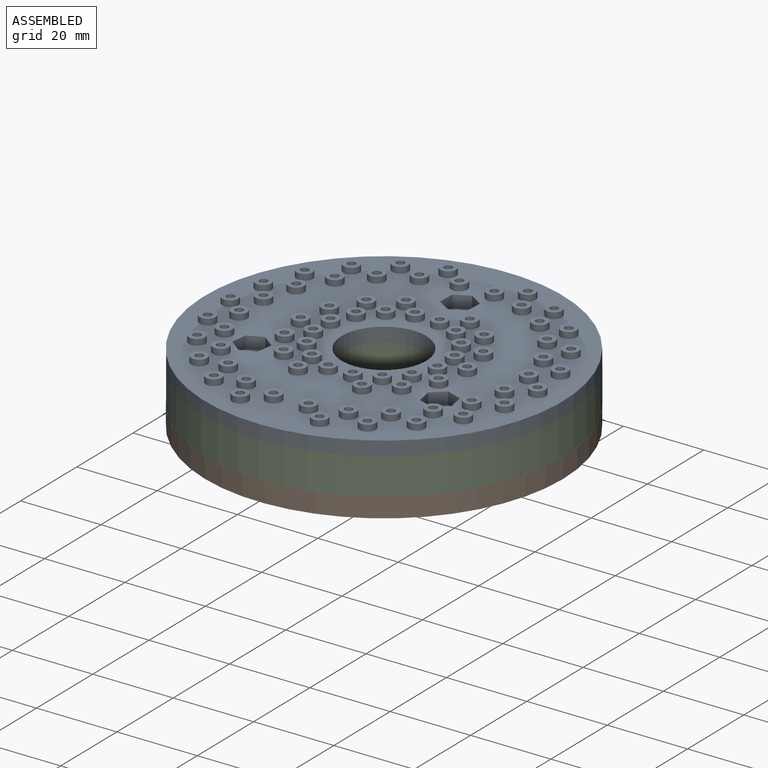
[diagram: assembled view]
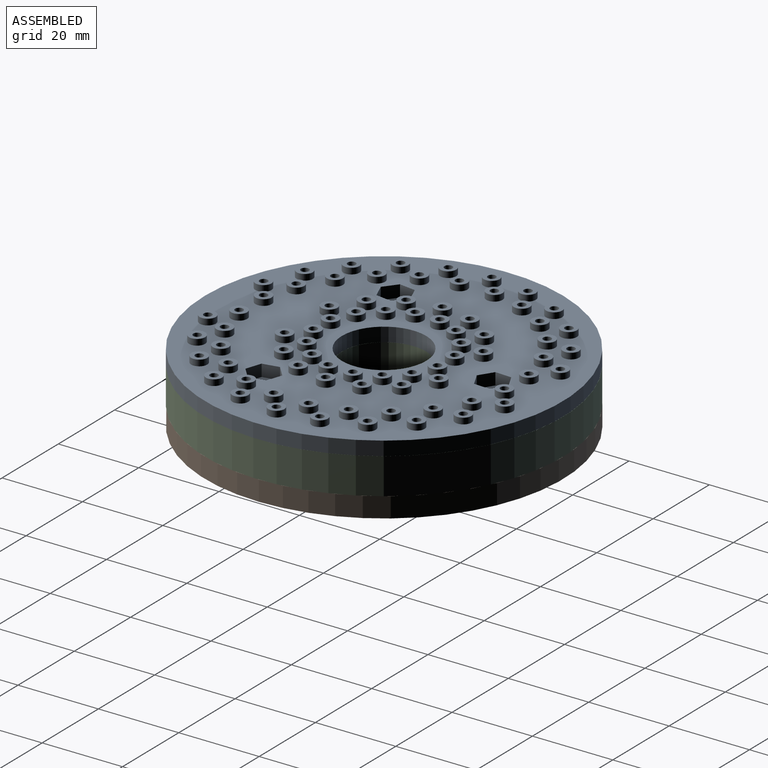
[diagram: assembled view, second angle]
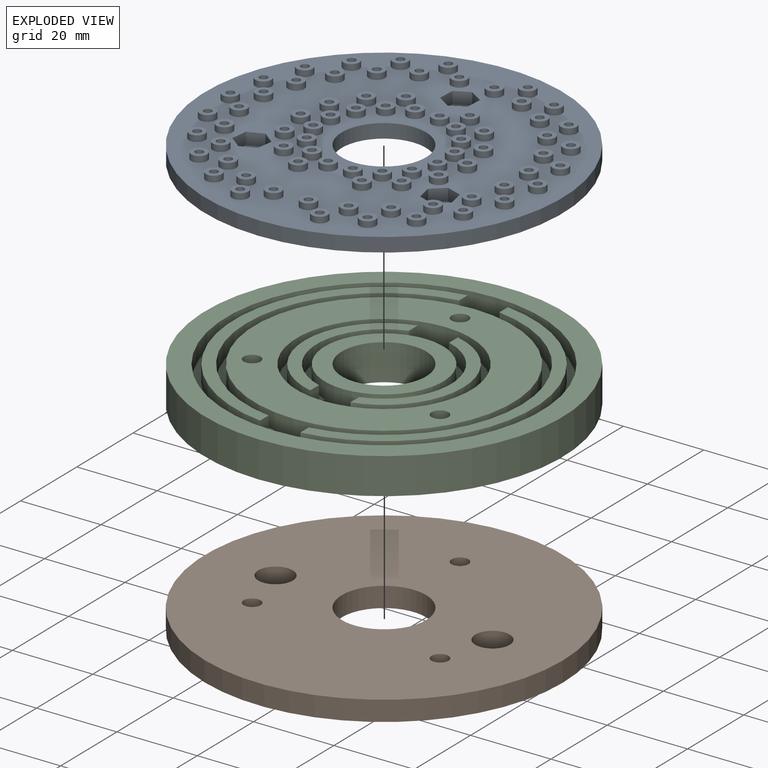
[diagram: exploded view]
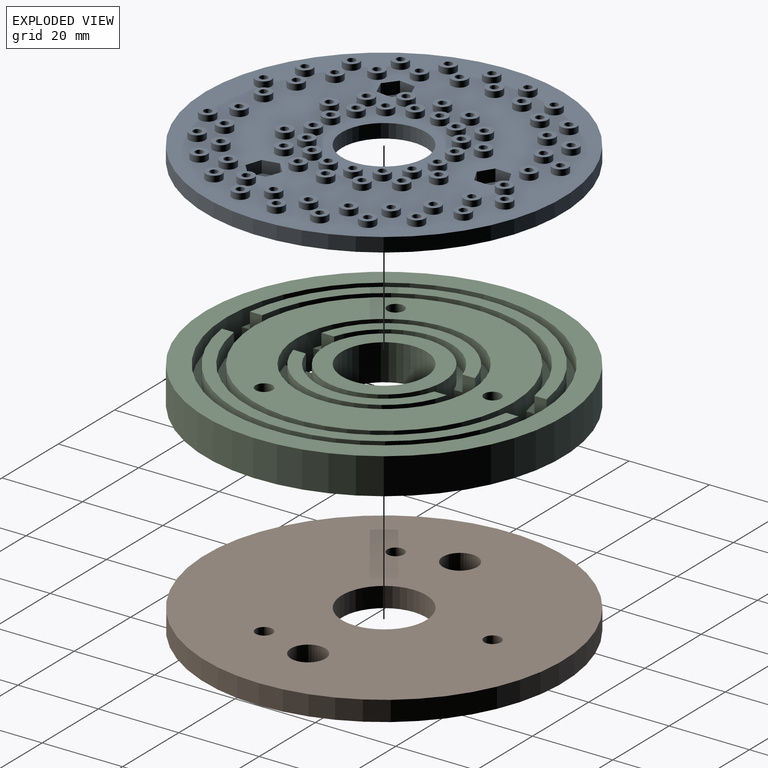
[diagram: exploded view, second angle]
ASSEMBLY  parts=3 mates=2
PART A: 256 faces, bbox 89x89x5 mm
  f0: cylinder r=2.1mm len=4.2mm, axis (0,0,-1), area 6.6mm2, adj f6,f20
  f1: cylinder r=2.1mm len=4.2mm, axis (0,0,-1), area 6.6mm2, adj f6,f27
  f2: cylinder r=2.1mm len=4.2mm, axis (0,0,-1), area 6.6mm2, adj f6,f13
  f3: cylinder r=10.5mm len=21mm, axis (0,0,-1), area 230.9mm2, adj f5,f6
  f4: cylinder r=44.5mm len=89mm, axis (0,0,-1), area 978.6mm2, adj f5,f6
  f5: plane 89x89mm, normal (0,0,1), area 4788.8mm2, adj f3,f4,f7,f8,f9,f10,f11,f12
  f6: plane 89x89mm, normal (0,0,-1), area 5594.5mm2, adj f0,f1,f2,f3,f4,f29,f31,f34
  f7: plane 4.09x3mm, normal (-0.05,-1,0), area 12.3mm2, adj f5,f8,f12,f13
  f8: plane 3.45x3mm, normal (0.84,-0.54,0), area 12.3mm2, adj f5,f7,f9,f13
  f9: plane 3.64x3mm, normal (0.89,0.46,0), area 12.3mm2, adj f5,f8,f10,f13
  f10: plane 4.09x3mm, normal (0.05,1,0), area 12.3mm2, adj f5,f9,f11,f13
  f11: plane 3.45x3mm, normal (-0.84,0.54,0), area 12.3mm2, adj f5,f10,f12,f13
  f12: plane 3.64x3mm, normal (-0.89,-0.46,0), area 12.3mm2, adj f5,f7,f11,f13
  f13: plane 8.19x7.29mm, normal (0,0,1), area 29.8mm2, adj f2,f7,f8,f9,f10,f11,f12
  f14: plane 3.07x3mm, normal (-0.75,-0.66,0), area 12.3mm2, adj f5,f15,f19,f20
  f15: plane 4.02x3mm, normal (0.2,-0.98,0), area 12.3mm2, adj f5,f14,f16,f20
  f16: plane 3.89x3mm, normal (0.95,-0.32,0), area 12.3mm2, adj f5,f15,f17,f20
  f17: plane 3.07x3mm, normal (0.75,0.66,0), area 12.3mm2, adj f5,f16,f18,f20
  f18: plane 4.02x3mm, normal (-0.2,0.98,0), area 12.3mm2, adj f5,f17,f19,f20
  f19: plane 3.89x3mm, normal (-0.95,0.32,0), area 12.3mm2, adj f5,f14,f18,f20
  f20: plane 8.03x7.77mm, normal (0,0,1), area 29.8mm2, adj f0,f14,f15,f16,f17,f18,f19
  f21: plane 4.06x3mm, normal (0.13,0.99,0), area 12.3mm2, adj f5,f22,f26,f27
  f22: plane 3.25x3mm, normal (-0.79,0.61,0), area 12.3mm2, adj f5,f21,f23,f27
  f23: plane 3.79x3mm, normal (-0.92,-0.38,0), area 12.3mm2, adj f5,f22,f24,f27
  f24: plane 4.06x3mm, normal (-0.13,-0.99,0), area 12.3mm2, adj f5,f23,f25,f27
  f25: plane 3.25x3mm, normal (0.79,-0.61,0), area 12.3mm2, adj f5,f24,f26,f27
  f26: plane 3.79x3mm, normal (0.92,0.38,0), area 12.3mm2, adj f5,f21,f25,f27
  f27: plane 8.13x7.58mm, normal (0,0,1), area 29.8mm2, adj f1,f21,f22,f23,f24,f25,f26
  f28: cylinder r=2mm len=4mm, axis (0,0,-1), area 18.8mm2, adj f5,f30
  f29: cylinder r=1mm len=5mm, axis (0,0,-1), area 31.4mm2, adj f6,f30
  f30: plane 4x4mm, normal (0,0,1), area 9.4mm2, adj f28,f29
  f31: cylinder r=1mm len=5mm, axis (0,0,-1), area 31.4mm2, adj f6,f33
  f32: cylinder r=2mm len=4mm, axis (0,0,-1), area 18.8mm2, adj f5,f33
  f33: plane 4x4mm, normal (0,0,1), area 9.4mm2, adj f31,f32
  f34: cylinder r=1mm len=5mm, axis (0,0,-1), area 31.4mm2, adj f6,f36
  f35: cylinder r=2mm len=4mm, axis (0,0,-1), area 18.8mm2, adj f5,f36
  f36: plane 4x4mm, normal (0,0,1), area 9.4mm2, adj f34,f35
  f37: cylinder r=1mm len=5mm, axis (0,0,-1), area 31.4mm2, adj f6,f39
  f38: cylinder r=2mm len=4mm, axis (0,0,-1), area 18.8mm2, adj f5,f39
  f39: plane 4x4mm, normal (0,0,1), area 9.4mm2, adj f37,f38
  f40: cylinder r=1mm len=5mm, axis (0,0,-1), area 31.4mm2, adj f6,f42
  f41: cylinder r=2mm len=4mm, axis (0,0,-1), area 18.8mm2, adj f5,f42
  f42: plane 4x4mm, normal (0,0,1), area 9.4mm2, adj f40,f41
  f43: cylinder r=1mm len=5mm, axis (0,0,-1), area 31.4mm2, adj f6,f45
  f44: cylinder r=2mm len=4mm, axis (0,0,-1), area 18.8mm2, adj f5,f45
  f45: plane 4x4mm, normal (0,0,1), area 9.4mm2, adj f43,f44
  f46: cylinder r=1mm len=5mm, axis (0,0,-1), area 31.4mm2, adj f6,f48
  f47: cylinder r=2mm len=4mm, axis (0,0,-1), area 18.8mm2, adj f5,f48
  f48: plane 4x4mm, normal (0,0,1), area 9.4mm2, adj f46,f47
  f49: cylinder r=1mm len=5mm, axis (0,0,-1), area 31.4mm2, adj f6,f51
  f50: cylinder r=2mm len=4mm, axis (0,0,-1), area 18.8mm2, adj f5,f51
  f51: plane 4x4mm, normal (0,0,1), area 9.4mm2, adj f49,f50
  f52: cylinder r=1mm len=5mm, axis (0,0,-1), area 31.4mm2, adj f6,f54
  f53: cylinder r=2mm len=4mm, axis (0,0,-1), area 18.8mm2, adj f5,f54
  f54: plane 4x4mm, normal (0,0,1), area 9.4mm2, adj f52,f53
  f55: cylinder r=1mm len=5mm, axis (0,0,-1), area 31.4mm2, adj f6,f57
  f56: cylinder r=2mm len=4mm, axis (0,0,-1), area 18.8mm2, adj f5,f57
  f57: plane 4x4mm, normal (0,0,1), area 9.4mm2, adj f55,f56
  f58: cylinder r=1mm len=5mm, axis (0,0,-1), area 31.4mm2, adj f6,f60
  f59: cylinder r=2mm len=4mm, axis (0,0,-1), area 18.8mm2, adj f5,f60
  f60: plane 4x4mm, normal (0,0,1), area 9.4mm2, adj f58,f59
  f61: cylinder r=2mm len=4mm, axis (0,0,-1), area 18.8mm2, adj f5,f63
  f62: cylinder r=1mm len=5mm, axis (0,0,-1), area 31.4mm2, adj f6,f63
  f63: plane 4x4mm, normal (0,0,1), area 9.4mm2, adj f61,f62
  f64: cylinder r=1mm len=5mm, axis (0,0,-1), area 31.4mm2, adj f6,f66
  f65: cylinder r=2mm len=4mm, axis (0,0,-1), area 18.8mm2, adj f5,f66
  f66: plane 4x4mm, normal (0,0,1), area 9.4mm2, adj f64,f65
  f67: cylinder r=1mm len=5mm, axis (0,0,-1), area 31.4mm2, adj f6,f69
  f68: cylinder r=2mm len=4mm, axis (0,0,-1), area 18.8mm2, adj f5,f69
  f69: plane 4x4mm, normal (0,0,1), area 9.4mm2, adj f67,f68
  f70: cylinder r=1mm len=5mm, axis (0,0,-1), area 31.4mm2, adj f6,f72
  f71: cylinder r=2mm len=4mm, axis (0,0,-1), area 18.8mm2, adj f5,f72
  f72: plane 4x4mm, normal (0,0,1), area 9.4mm2, adj f70,f71
  f73: cylinder r=1mm len=5mm, axis (0,0,-1), area 31.4mm2, adj f6,f75
  f74: cylinder r=2mm len=4mm, axis (0,0,-1), area 18.8mm2, adj f5,f75
  f75: plane 4x4mm, normal (0,0,1), area 9.4mm2, adj f73,f74
  f76: cylinder r=1mm len=5mm, axis (0,0,-1), area 31.4mm2, adj f6,f78
  f77: cylinder r=2mm len=4mm, axis (0,0,-1), area 18.8mm2, adj f5,f78
  f78: plane 4x4mm, normal (0,0,1), area 9.4mm2, adj f76,f77
  f79: cylinder r=1mm len=5mm, axis (0,0,-1), area 31.4mm2, adj f6,f81
  f80: cylinder r=2mm len=4mm, axis (0,0,-1), area 18.8mm2, adj f5,f81
  f81: plane 4x4mm, normal (0,0,1), area 9.4mm2, adj f79,f80
  f82: cylinder r=1mm len=5mm, axis (0,0,-1), area 31.4mm2, adj f6,f84
  f83: cylinder r=2mm len=4mm, axis (0,0,-1), area 18.8mm2, adj f5,f84
  f84: plane 4x4mm, normal (0,0,1), area 9.4mm2, adj f82,f83
  f85: cylinder r=1mm len=5mm, axis (0,0,-1), area 31.4mm2, adj f6,f87
  f86: cylinder r=2mm len=4mm, axis (0,0,-1), area 18.8mm2, adj f5,f87
  f87: plane 4x4mm, normal (0,0,1), area 9.4mm2, adj f85,f86
  f88: cylinder r=1mm len=5mm, axis (0,0,-1), area 31.4mm2, adj f6,f90
  f89: cylinder r=2mm len=4mm, axis (0,0,-1), area 18.8mm2, adj f5,f90
  f90: plane 4x4mm, normal (0,0,1), area 9.4mm2, adj f88,f89
  f91: cylinder r=1mm len=5mm, axis (0,0,-1), area 31.4mm2, adj f6,f93
  f92: cylinder r=2mm len=4mm, axis (0,0,-1), area 18.8mm2, adj f5,f93
  f93: plane 4x4mm, normal (0,0,1), area 9.4mm2, adj f91,f92
  f94: cylinder r=1mm len=5mm, axis (0,0,-1), area 31.4mm2, adj f6,f96
  f95: cylinder r=2mm len=4mm, axis (0,0,-1), area 18.8mm2, adj f5,f96
  f96: plane 4x4mm, normal (0,0,1), area 9.4mm2, adj f94,f95
  f97: cylinder r=1mm len=5mm, axis (0,0,-1), area 31.4mm2, adj f6,f99
  f98: cylinder r=2mm len=4mm, axis (0,0,-1), area 18.8mm2, adj f5,f99
  f99: plane 4x4mm, normal (0,0,1), area 9.4mm2, adj f97,f98
  f100: cylinder r=1mm len=5mm, axis (0,0,-1), area 31.4mm2, adj f6,f102
  f101: cylinder r=2mm len=4mm, axis (0,0,-1), area 18.8mm2, adj f5,f102
  f102: plane 4x4mm, normal (0,0,1), area 9.4mm2, adj f100,f101
  f103: cylinder r=1mm len=5mm, axis (0,0,-1), area 31.4mm2, adj f6,f105
  f104: cylinder r=2mm len=4mm, axis (0,0,-1), area 18.8mm2, adj f5,f105
  f105: plane 4x4mm, normal (0,0,1), area 9.4mm2, adj f103,f104
  f106: cylinder r=1mm len=5mm, axis (0,0,-1), area 31.4mm2, adj f6,f108
  f107: cylinder r=2mm len=4mm, axis (0,0,-1), area 18.8mm2, adj f5,f108
  f108: plane 4x4mm, normal (0,0,1), area 9.4mm2, adj f106,f107
  f109: cylinder r=1mm len=5mm, axis (0,0,-1), area 31.4mm2, adj f6,f111
  f110: cylinder r=2mm len=4mm, axis (0,0,-1), area 18.8mm2, adj f5,f111
  f111: plane 4x4mm, normal (0,0,1), area 9.4mm2, adj f109,f110
  f112: cylinder r=1mm len=5mm, axis (0,0,-1), area 31.4mm2, adj f6,f114
  f113: cylinder r=2mm len=4mm, axis (0,0,-1), area 18.8mm2, adj f5,f114
  f114: plane 4x4mm, normal (0,0,1), area 9.4mm2, adj f112,f113
  f115: cylinder r=1mm len=5mm, axis (0,0,-1), area 31.4mm2, adj f6,f117
  f116: cylinder r=2mm len=4mm, axis (0,0,-1), area 18.8mm2, adj f5,f117
  f117: plane 4x4mm, normal (0,0,1), area 9.4mm2, adj f115,f116
  f118: cylinder r=1mm len=5mm, axis (0,0,-1), area 31.4mm2, adj f6,f120
  f119: cylinder r=2mm len=4mm, axis (0,0,-1), area 18.8mm2, adj f5,f120
  f120: plane 4x4mm, normal (0,0,1), area 9.4mm2, adj f118,f119
  f121: cylinder r=1mm len=5mm, axis (0,0,-1), area 31.4mm2, adj f6,f123
  f122: cylinder r=2mm len=4mm, axis (0,0,-1), area 18.8mm2, adj f5,f123
  f123: plane 4x4mm, normal (0,0,1), area 9.4mm2, adj f121,f122
  f124: cylinder r=1mm len=5mm, axis (0,0,-1), area 31.4mm2, adj f6,f126
  f125: cylinder r=2mm len=4mm, axis (0,0,-1), area 18.8mm2, adj f5,f126
  f126: plane 4x4mm, normal (0,0,1), area 9.4mm2, adj f124,f125
  f127: cylinder r=1mm len=5mm, axis (0,0,-1), area 31.4mm2, adj f6,f129
  f128: cylinder r=2mm len=4mm, axis (0,0,-1), area 18.8mm2, adj f5,f129
  f129: plane 4x4mm, normal (0,0,1), area 9.4mm2, adj f127,f128
  f130: cylinder r=1mm len=5mm, axis (0,0,-1), area 31.4mm2, adj f6,f132
  f131: cylinder r=2mm len=4mm, axis (0,0,-1), area 18.8mm2, adj f5,f132
  f132: plane 4x4mm, normal (0,0,1), area 9.4mm2, adj f130,f131
  f133: cylinder r=1mm len=5mm, axis (0,0,-1), area 31.4mm2, adj f6,f135
  f134: cylinder r=2mm len=4mm, axis (0,0,-1), area 18.8mm2, adj f5,f135
  f135: plane 4x4mm, normal (0,0,1), area 9.4mm2, adj f133,f134
  f136: cylinder r=1mm len=5mm, axis (0,0,-1), area 31.4mm2, adj f6,f138
  f137: cylinder r=2mm len=4mm, axis (0,0,-1), area 18.8mm2, adj f5,f138
  f138: plane 4x4mm, normal (0,0,1), area 9.4mm2, adj f136,f137
  f139: cylinder r=1mm len=5mm, axis (0,0,-1), area 31.4mm2, adj f6,f141
  f140: cylinder r=2mm len=4mm, axis (0,0,-1), area 18.8mm2, adj f5,f141
  f141: plane 4x4mm, normal (0,0,1), area 9.4mm2, adj f139,f140
  f142: cylinder r=1mm len=5mm, axis (0,0,-1), area 31.4mm2, adj f6,f144
  f143: cylinder r=2mm len=4mm, axis (0,0,-1), area 18.8mm2, adj f5,f144
  f144: plane 4x4mm, normal (0,0,1), area 9.4mm2, adj f142,f143
  f145: cylinder r=1mm len=5mm, axis (0,0,-1), area 31.4mm2, adj f6,f147
  f146: cylinder r=2mm len=4mm, axis (0,0,-1), area 18.8mm2, adj f5,f147
  f147: plane 4x4mm, normal (0,0,1), area 9.4mm2, adj f145,f146
  f148: cylinder r=1mm len=5mm, axis (0,0,-1), area 31.4mm2, adj f6,f150
  f149: cylinder r=2mm len=4mm, axis (0,0,-1), area 18.8mm2, adj f5,f150
  f150: plane 4x4mm, normal (0,0,1), area 9.4mm2, adj f148,f149
  f151: cylinder r=1mm len=5mm, axis (0,0,-1), area 31.4mm2, adj f6,f153
  f152: cylinder r=2mm len=4mm, axis (0,0,-1), area 18.8mm2, adj f5,f153
  f153: plane 4x4mm, normal (0,0,1), area 9.4mm2, adj f151,f152
  f154: cylinder r=1mm len=5mm, axis (0,0,-1), area 31.4mm2, adj f6,f156
  f155: cylinder r=2mm len=4mm, axis (0,0,-1), area 18.8mm2, adj f5,f156
  f156: plane 4x4mm, normal (0,0,1), area 9.4mm2, adj f154,f155
  f157: cylinder r=1mm len=5mm, axis (0,0,-1), area 31.4mm2, adj f6,f159
  f158: cylinder r=2mm len=4mm, axis (0,0,-1), area 18.8mm2, adj f5,f159
  f159: plane 4x4mm, normal (0,0,1), area 9.4mm2, adj f157,f158
  f160: cylinder r=1mm len=5mm, axis (0,0,-1), area 31.4mm2, adj f6,f162
  f161: cylinder r=2mm len=4mm, axis (0,0,-1), area 18.8mm2, adj f5,f162
  f162: plane 4x4mm, normal (0,0,1), area 9.4mm2, adj f160,f161
  f163: cylinder r=1mm len=5mm, axis (0,0,-1), area 31.4mm2, adj f6,f165
  f164: cylinder r=2mm len=4mm, axis (0,0,-1), area 18.8mm2, adj f5,f165
  f165: plane 4x4mm, normal (0,0,1), area 9.4mm2, adj f163,f164
  f166: cylinder r=2mm len=4mm, axis (0,0,-1), area 18.8mm2, adj f5,f168
  f167: cylinder r=1mm len=5mm, axis (0,0,-1), area 31.4mm2, adj f6,f168
  f168: plane 4x4mm, normal (0,0,1), area 9.4mm2, adj f166,f167
  f169: cylinder r=1mm len=5mm, axis (0,0,-1), area 31.4mm2, adj f6,f171
  f170: cylinder r=2mm len=4mm, axis (0,0,-1), area 18.8mm2, adj f5,f171
  f171: plane 4x4mm, normal (0,0,1), area 9.4mm2, adj f169,f170
  f172: cylinder r=1mm len=5mm, axis (0,0,-1), area 31.4mm2, adj f6,f174
  f173: cylinder r=2mm len=4mm, axis (0,0,-1), area 18.8mm2, adj f5,f174
  f174: plane 4x4mm, normal (0,0,1), area 9.4mm2, adj f172,f173
  f175: cylinder r=1mm len=5mm, axis (0,0,-1), area 31.4mm2, adj f6,f177
  f176: cylinder r=2mm len=4mm, axis (0,0,-1), area 18.8mm2, adj f5,f177
  f177: plane 4x4mm, normal (0,0,1), area 9.4mm2, adj f175,f176
  f178: cylinder r=1mm len=5mm, axis (0,0,-1), area 31.4mm2, adj f6,f180
  f179: cylinder r=2mm len=4mm, axis (0,0,-1), area 18.8mm2, adj f5,f180
  f180: plane 4x4mm, normal (0,0,1), area 9.4mm2, adj f178,f179
  f181: cylinder r=1mm len=5mm, axis (0,0,-1), area 31.4mm2, adj f6,f183
  f182: cylinder r=2mm len=4mm, axis (0,0,-1), area 18.8mm2, adj f5,f183
  f183: plane 4x4mm, normal (0,0,1), area 9.4mm2, adj f181,f182
  f184: cylinder r=1mm len=5mm, axis (0,0,-1), area 31.4mm2, adj f6,f186
  f185: cylinder r=2mm len=4mm, axis (0,0,-1), area 18.8mm2, adj f5,f186
  f186: plane 4x4mm, normal (0,0,1), area 9.4mm2, adj f184,f185
  f187: cylinder r=2mm len=4mm, axis (0,0,-1), area 18.8mm2, adj f5,f189
  f188: cylinder r=1mm len=5mm, axis (0,0,-1), area 31.4mm2, adj f6,f189
  f189: plane 4x4mm, normal (0,0,1), area 9.4mm2, adj f187,f188
  f190: cylinder r=1mm len=5mm, axis (0,0,-1), area 31.4mm2, adj f6,f192
  f191: cylinder r=2mm len=4mm, axis (0,0,-1), area 18.8mm2, adj f5,f192
  f192: plane 4x4mm, normal (0,0,1), area 9.4mm2, adj f190,f191
  f193: cylinder r=1mm len=5mm, axis (0,0,-1), area 31.4mm2, adj f6,f195
  f194: cylinder r=2mm len=4mm, axis (0,0,-1), area 18.8mm2, adj f5,f195
  f195: plane 4x4mm, normal (0,0,1), area 9.4mm2, adj f193,f194
  f196: cylinder r=1mm len=5mm, axis (0,0,-1), area 31.4mm2, adj f6,f198
  f197: cylinder r=2mm len=4mm, axis (0,0,-1), area 18.8mm2, adj f5,f198
  f198: plane 4x4mm, normal (0,0,1), area 9.4mm2, adj f196,f197
  f199: cylinder r=1mm len=5mm, axis (0,0,-1), area 31.4mm2, adj f6,f201
  f200: cylinder r=2mm len=4mm, axis (0,0,-1), area 18.8mm2, adj f5,f201
  f201: plane 4x4mm, normal (0,0,1), area 9.4mm2, adj f199,f200
  f202: cylinder r=1mm len=5mm, axis (0,0,-1), area 31.4mm2, adj f6,f204
  f203: cylinder r=2mm len=4mm, axis (0,0,-1), area 18.8mm2, adj f5,f204
  f204: plane 4x4mm, normal (0,0,1), area 9.4mm2, adj f202,f203
  f205: cylinder r=1mm len=5mm, axis (0,0,-1), area 31.4mm2, adj f6,f207
  f206: cylinder r=2mm len=4mm, axis (0,0,-1), area 18.8mm2, adj f5,f207
  f207: plane 4x4mm, normal (0,0,1), area 9.4mm2, adj f205,f206
  f208: cylinder r=1mm len=5mm, axis (0,0,-1), area 31.4mm2, adj f6,f210
  f209: cylinder r=2mm len=4mm, axis (0,0,-1), area 18.8mm2, adj f5,f210
  f210: plane 4x4mm, normal (0,0,1), area 9.4mm2, adj f208,f209
  f211: cylinder r=1mm len=5mm, axis (0,0,-1), area 31.4mm2, adj f6,f213
  f212: cylinder r=2mm len=4mm, axis (0,0,-1), area 18.8mm2, adj f5,f213
  f213: plane 4x4mm, normal (0,0,1), area 9.4mm2, adj f211,f212
  f214: cylinder r=1mm len=5mm, axis (0,0,-1), area 31.4mm2, adj f6,f216
  f215: cylinder r=2mm len=4mm, axis (0,0,-1), area 18.8mm2, adj f5,f216
  f216: plane 4x4mm, normal (0,0,1), area 9.4mm2, adj f214,f215
  f217: cylinder r=1mm len=5mm, axis (0,0,-1), area 31.4mm2, adj f6,f219
  f218: cylinder r=2mm len=4mm, axis (0,0,-1), area 18.8mm2, adj f5,f219
  f219: plane 4x4mm, normal (0,0,1), area 9.4mm2, adj f217,f218
  f220: cylinder r=1mm len=5mm, axis (0,0,-1), area 31.4mm2, adj f6,f222
  f221: cylinder r=2mm len=4mm, axis (0,0,-1), area 18.8mm2, adj f5,f222
  f222: plane 4x4mm, normal (0,0,1), area 9.4mm2, adj f220,f221
  f223: cylinder r=1mm len=5mm, axis (0,0,-1), area 31.4mm2, adj f6,f225
  f224: cylinder r=2mm len=4mm, axis (0,0,-1), area 18.8mm2, adj f5,f225
  f225: plane 4x4mm, normal (0,0,1), area 9.4mm2, adj f223,f224
  f226: cylinder r=1mm len=5mm, axis (0,0,-1), area 31.4mm2, adj f6,f228
  f227: cylinder r=2mm len=4mm, axis (0,0,-1), area 18.8mm2, adj f5,f228
  f228: plane 4x4mm, normal (0,0,1), area 9.4mm2, adj f226,f227
  f229: cylinder r=1mm len=5mm, axis (0,0,-1), area 31.4mm2, adj f6,f231
  f230: cylinder r=2mm len=4mm, axis (0,0,-1), area 18.8mm2, adj f5,f231
  f231: plane 4x4mm, normal (0,0,1), area 9.4mm2, adj f229,f230
  f232: cylinder r=1mm len=5mm, axis (0,0,-1), area 31.4mm2, adj f6,f234
  f233: cylinder r=2mm len=4mm, axis (0,0,-1), area 18.8mm2, adj f5,f234
  f234: plane 4x4mm, normal (0,0,1), area 9.4mm2, adj f232,f233
  f235: cylinder r=1mm len=5mm, axis (0,0,-1), area 31.4mm2, adj f6,f237
  f236: cylinder r=2mm len=4mm, axis (0,0,-1), area 18.8mm2, adj f5,f237
  f237: plane 4x4mm, normal (0,0,1), area 9.4mm2, adj f235,f236
  f238: cylinder r=1mm len=5mm, axis (0,0,-1), area 31.4mm2, adj f6,f240
  f239: cylinder r=2mm len=4mm, axis (0,0,-1), area 18.8mm2, adj f5,f240
  f240: plane 4x4mm, normal (0,0,1), area 9.4mm2, adj f238,f239
  f241: cylinder r=1mm len=5mm, axis (0,0,-1), area 31.4mm2, adj f6,f243
  f242: cylinder r=2mm len=4mm, axis (0,0,-1), area 18.8mm2, adj f5,f243
  f243: plane 4x4mm, normal (0,0,1), area 9.4mm2, adj f241,f242
  f244: cylinder r=1mm len=5mm, axis (0,0,-1), area 31.4mm2, adj f6,f246
  f245: cylinder r=2mm len=4mm, axis (0,0,-1), area 18.8mm2, adj f5,f246
  f246: plane 4x4mm, normal (0,0,1), area 9.4mm2, adj f244,f245
  f247: cylinder r=1mm len=5mm, axis (0,0,-1), area 31.4mm2, adj f6,f249
  f248: cylinder r=2mm len=4mm, axis (0,0,-1), area 18.8mm2, adj f5,f249
  f249: plane 4x4mm, normal (0,0,1), area 9.4mm2, adj f247,f248
  f250: cylinder r=1mm len=5mm, axis (0,0,-1), area 31.4mm2, adj f6,f252
  f251: cylinder r=2mm len=4mm, axis (0,0,-1), area 18.8mm2, adj f5,f252
  f252: plane 4x4mm, normal (0,0,1), area 9.4mm2, adj f250,f251
  f253: cylinder r=1mm len=5mm, axis (0,0,-1), area 31.4mm2, adj f6,f255
  f254: cylinder r=2mm len=4mm, axis (0,0,-1), area 18.8mm2, adj f5,f255
  f255: plane 4x4mm, normal (0,0,1), area 9.4mm2, adj f253,f254
PART B: 9 faces, bbox 89x89x5 mm
  f0: cylinder r=10.5mm len=21mm, axis (0,0,-1), area 329.9mm2, adj f2,f3
  f1: cylinder r=44.5mm len=89mm, axis (0,0,-1), area 1398mm2, adj f2,f3
  f2: plane 89x89mm, normal (0,0,1), area 5717mm2, adj f0,f1,f4,f5,f6,f7,f8
  f3: plane 89x89mm, normal (0,0,-1), area 5717mm2, adj f0,f1,f4,f5,f6,f7,f8
  f4: cylinder r=4.3mm len=8.6mm, axis (0,0,-1), area 135.1mm2, adj f2,f3
  f5: cylinder r=4.3mm len=8.6mm, axis (0,0,-1), area 135.1mm2, adj f2,f3
  f6: cylinder r=2.1mm len=5mm, axis (0,0,1), area 66mm2, adj f2,f3
  f7: cylinder r=2.1mm len=5mm, axis (0,0,1), area 66mm2, adj f2,f3
  f8: cylinder r=2.1mm len=5mm, axis (0,0,1), area 66mm2, adj f2,f3
PART C: 51 faces, bbox 89x89x11.1 mm
  f0: plane 89x89mm, normal (0,0,-1), area 4471.2mm2, adj f16,f17,f19,f20,f21,f23,f25,f27
  f1: cylinder r=37.25mm len=73.83mm, axis (0,0,1), area 428mm2, adj f3,f9,f34,f37
  f2: cylinder r=37.25mm len=73.83mm, axis (0,0,1), area 428mm2, adj f4,f10,f35,f36
  f3: plane 77.86x34.25mm, normal (0,0,1), area 220.3mm2, adj f1,f19,f34,f37
  f4: plane 77.86x34.25mm, normal (0,0,1), area 220.3mm2, adj f2,f19,f35,f36
  f5: cylinder r=34.25mm len=67.77mm, axis (0,0,1), area 390.3mm2, adj f7,f9,f34,f37
  f6: cylinder r=34.25mm len=67.77mm, axis (0,0,1), area 390.3mm2, adj f8,f10,f35,f36
  f7: plane 67.77x29.25mm, normal (0,0,1), area 188.8mm2, adj f5,f20,f34,f37
  f8: plane 67.77x29.25mm, normal (0,0,1), area 188.8mm2, adj f6,f20,f35,f36
  f9: plane 73.83x32.25mm, normal (0,0,1), area 306.8mm2, adj f1,f5,f34,f37
  f10: plane 73.83x32.25mm, normal (0,0,1), area 306.8mm2, adj f2,f6,f35,f36
  f11: plane 42.34x16.75mm, normal (0,0,1), area 110.2mm2, adj f21,f22,f23,f29
  f12: plane 31.97x11.75mm, normal (0,0,1), area 78.6mm2, adj f21,f23,f27,f30
  f13: plane 42.34x16.75mm, normal (0,0,1), area 110.2mm2, adj f24,f25,f28,f29
  f14: plane 29.5x29.5mm, normal (0,0,1), area 337.1mm2, adj f16,f27
  f15: plane 64.5x64.5mm, normal (0,0,1), area 1739.7mm2, adj f20,f29,f38,f39,f40
  f16: cylinder r=10.5mm len=21mm, axis (0,0,-1), area 593.8mm2, adj f0,f14
  f17: cylinder r=44.5mm len=89mm, axis (0,0,-1), area 2516.4mm2, adj f0,f18
  f18: plane 89x89mm, normal (0,0,1), area 1381.3mm2, adj f17,f19
  f19: cylinder r=39.25mm len=78.5mm, axis (0,0,1), area 1086.7mm2, adj f0,f3,f4,f18,f34,f35,f36,f37
  f20: cylinder r=32.25mm len=64.5mm, axis (0,0,1), area 910.9mm2, adj f0,f7,f8,f15,f34,f35,f36,f37
  f21: plane 9x7.29mm, normal (0,1,0), area 34.2mm2, adj f0,f11,f12,f22,f27,f29,f30,f33
  f22: cylinder r=19.75mm len=38.21mm, axis (0,0,1), area 207.7mm2, adj f11,f21,f23,f33
  f23: plane 9x7.29mm, normal (0,1,0), area 34.2mm2, adj f0,f11,f12,f22,f27,f29,f30,f33
  f24: cylinder r=19.75mm len=38.21mm, axis (0,0,1), area 207.7mm2, adj f13,f25,f28,f32
  f25: plane 9x7.29mm, normal (0,-1,0), area 48.9mm2, adj f0,f13,f24,f26,f27,f29,f31,f32
  f26: cylinder r=16.75mm len=31.97mm, axis (0,0,1), area 169.9mm2, adj f25,f28,f31,f32
  f27: cylinder r=14.75mm len=29.5mm, axis (0,0,1), area 472.7mm2, adj f0,f12,f14,f21,f23,f25,f28,f31
  f28: plane 9x7.29mm, normal (0,-1,0), area 48.9mm2, adj f0,f13,f24,f26,f27,f29,f31,f32
  f29: cylinder r=21.75mm len=43.5mm, axis (0,0,1), area 647.5mm2, adj f0,f11,f13,f15,f21,f23,f25,f28
  f30: cylinder r=16.75mm len=31.97mm, axis (0,0,1), area 169.9mm2, adj f12,f21,f23,f33
  f31: plane 31.97x11.75mm, normal (0,0,1), area 78.6mm2, adj f25,f26,f27,f28
  f32: plane 38.21x14.75mm, normal (0,0,1), area 141.6mm2, adj f24,f25,f26,f28
  f33: plane 38.21x14.75mm, normal (0,0,1), area 141.6mm2, adj f21,f22,f23,f30
  f34: plane 9x7.07mm, normal (0,1,0), area 47.5mm2, adj f0,f1,f3,f5,f7,f9,f19,f20
  f35: plane 9x7.07mm, normal (0,-1,0), area 33.2mm2, adj f0,f2,f4,f6,f8,f10,f19,f20
  f36: plane 9x7.07mm, normal (0,-1,0), area 33.2mm2, adj f0,f2,f4,f6,f8,f10,f19,f20
  f37: plane 9x7.07mm, normal (0,1,0), area 47.5mm2, adj f0,f1,f3,f5,f7,f9,f19,f20
  f38: cylinder r=2.1mm len=9mm, axis (0,0,1), area 118.8mm2, adj f0,f15
  f39: cylinder r=2.1mm len=9mm, axis (0,0,1), area 118.8mm2, adj f0,f15
  f40: cylinder r=2.1mm len=9mm, axis (0,0,1), area 118.8mm2, adj f0,f15
  f41: torus R=35.75mm, axis (0,0,-1), area 947.3mm2, adj f0,f35,f36,f46,f47,f48
  f42: torus R=18.25mm, axis (0,0,-1), area 427.2mm2, adj f0,f21,f23,f44,f49,f50
  f43: plane 9.1x2.92mm, normal (0,1,0), area 14.5mm2, adj f0,f44,f49,f50
  f44: cylinder r=3mm len=12.38mm, axis (0,-1,0), area 78.3mm2, adj f42,f43,f49,f50
  f45: plane 9.03x2.86mm, normal (0,1,0), area 14mm2, adj f0,f46,f47,f48
  f46: cylinder r=3mm len=12.13mm, axis (0,-1,0), area 75.8mm2, adj f41,f45,f47,f48
  f47: cylinder r=2mm len=10.16mm, axis (0,-1,0), area 22.3mm2, adj f0,f41,f45,f46
  f48: cylinder r=2mm len=10.16mm, axis (0,-1,0), area 22.3mm2, adj f0,f41,f45,f46
  f49: cylinder r=2mm len=10.54mm, axis (0,-1,0), area 23.8mm2, adj f0,f42,f43,f44
  f50: cylinder r=2mm len=10.54mm, axis (0,-1,0), area 23.8mm2, adj f0,f42,f43,f44
PLACE A rot(axis=(0,0,-1),90deg) t=(58.72,-31.82,-0.66)mm
PLACE B t=(58.72,-31.79,-14.66)mm
PLACE C rot(axis=(0,0,-1),90deg) t=(58.72,-31.79,-5.66)mm
MATE fastened A.f2 <-> C.f40  axis (0,0,-1) through (58.72,-4.79,-0.66)mm
MATE fastened B.f8 <-> C.f40  axis (0,0,1) through (58.72,-4.79,-9.66)mm
